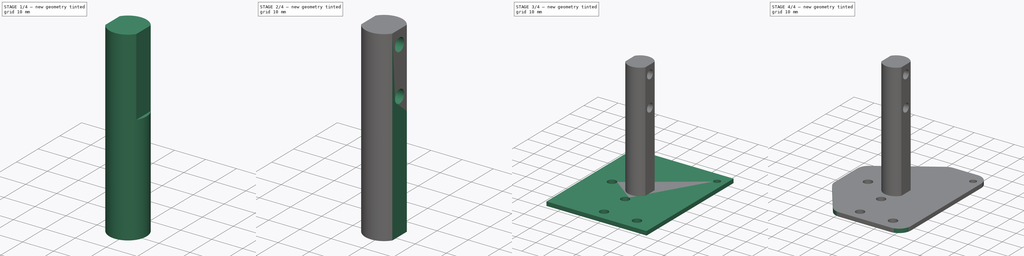
[diagram: build sequence overview — one tinted view per stage of 4, left to right]
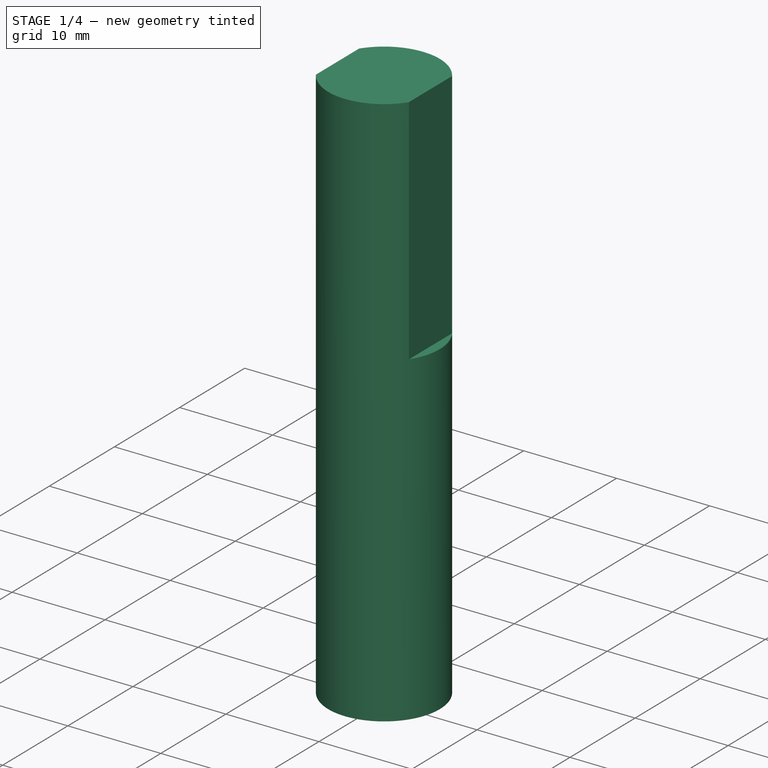
[diagram: stage 1 of 4 — iso view after this stage's code; geometry added in this stage tinted green]
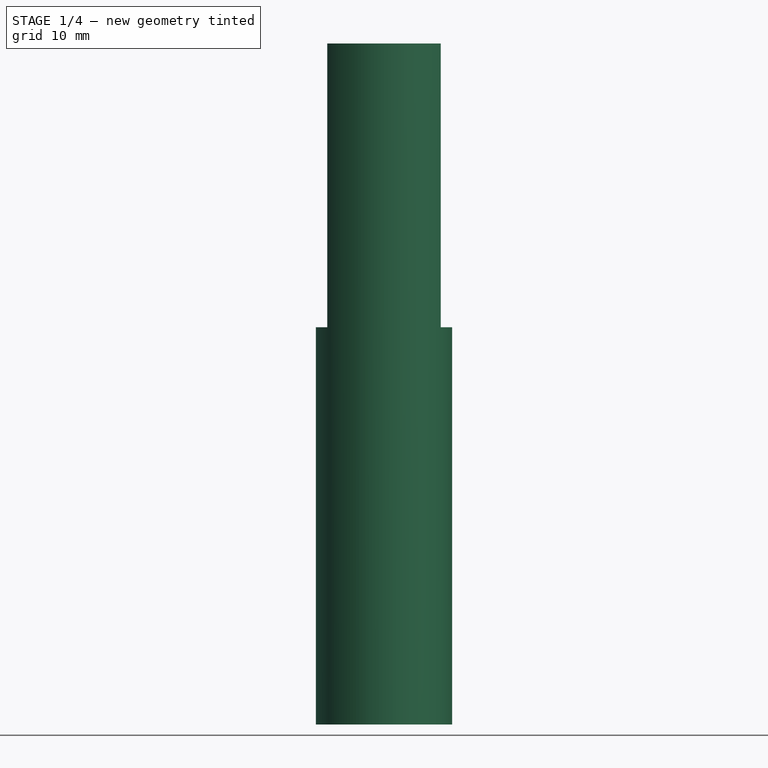
[diagram: stage 1 of 4 — front view after this stage's code; geometry added in this stage tinted green]
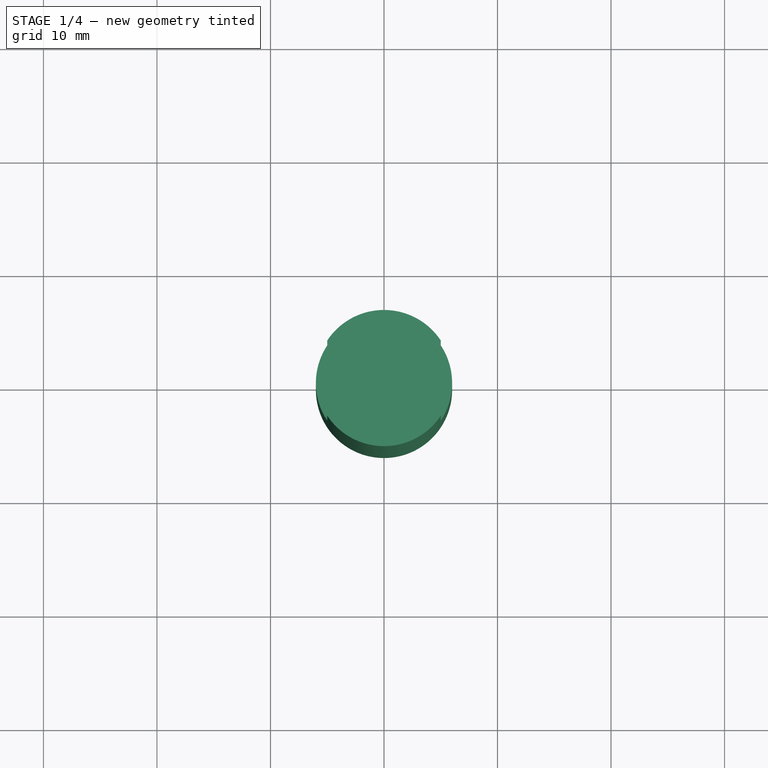
[diagram: stage 1 of 4 — top view after this stage's code; geometry added in this stage tinted green]
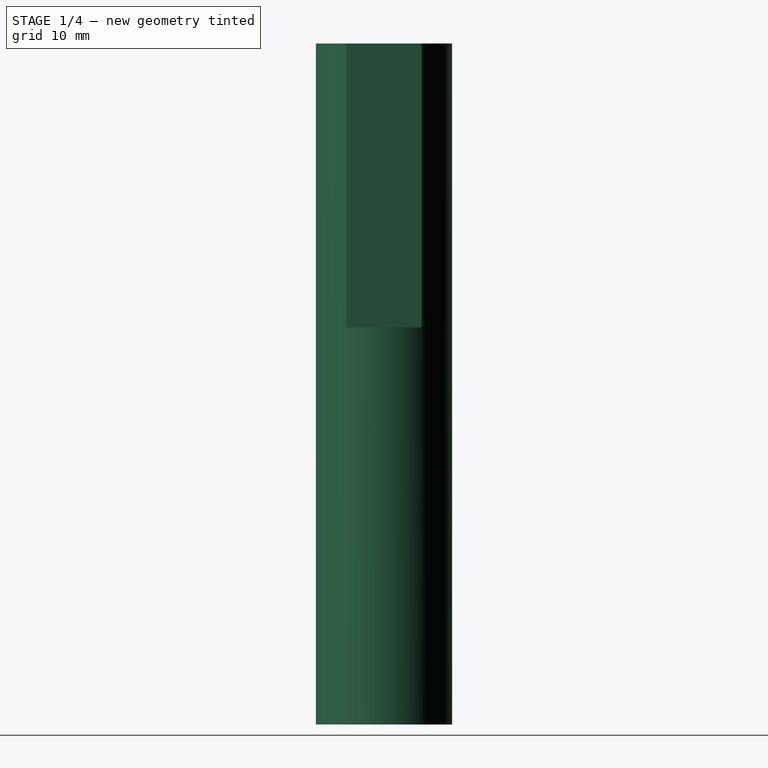
[diagram: stage 1 of 4 — right view after this stage's code; geometry added in this stage tinted green]
FCSTD DOCUMENT  (FreeCAD 1.1R20260325 (Git shallow))
Label: BaseMountFix
License: All rights reserved
LicenseURL: https://en.wikipedia.org/wiki/All_rights_reserved
objects: Sketcher::SketchObject×8, PartDesign::Pocket×5, App::Point×4, PartDesign::Pad×3, PartDesign::Body×2, App::Part×2, PartDesign::Fillet×1
note: 45 computed .brp shape members not serialized (recipe doc carries the construction recipe); baked Part::Feature solids carry a one-line shape summary decoded from their .brp

FEATURE [App::Point] Origin005  label="Origin006"
  Role = Origin
FEATURE [App::Point] Origin007  label="Origin009"
  Role = Origin
FEATURE [Sketcher::SketchObject] Sketch002
  ArcFitTolerance = 1e-06
  AttachmentSupport = -> [Origin006]
  ExternalTypes = [0]
  FullyConstrained = true
  MakeInternals = false
  MapMode = 5
  _ExternalGeoVersion = 1
  sketch-geometry (1):
    g0: Circle CenterX=0 CenterY=0 CenterZ=0 NormalX=0 NormalY=0 NormalZ=1 AngleXU=0 Radius=6
  constraints (2):
    c: Diameter(g0) = 12
    c: Coincident(g0,g-1)
FEATURE [PartDesign::Pad] Pad001  label="RoundPad"
  Direction = (0,0,1)
  Length = 35
  Length2 = 10
  Profile = -> Sketch002
  ReferenceAxis = -> Sketch002 [N_Axis]
  Refine = true
  SideType = 0
  Suppressed = false
  Type = 0
  Type2 = 0
FEATURE [Sketcher::SketchObject] Sketch003
  ArcFitTolerance = 1e-06
  AttachmentSupport = -> [Pad001]
  ExternalTypes = [0]
  FullyConstrained = true
  MakeInternals = false
  MapMode = 5
  Placement = pos=(0,0,35) rot=(0,0,1;0rad)
  _ExternalGeoVersion = 1
  sketch-geometry (4):
    g0: ArcOfCircle CenterX=0 CenterY=0 CenterZ=0 NormalX=0 NormalY=0 NormalZ=1 AngleXU=0 Radius=6 StartAngle=3.72728 EndAngle=5.6975
    g1: LineSegment StartX=5 StartY=3.31338 StartZ=0 EndX=5 EndY=-3.31662 EndZ=0
    g2: LineSegment StartX=-5 StartY=3.31338 StartZ=0 EndX=-5 EndY=-3.31662 EndZ=0
    g3: ArcOfCircle CenterX=0 CenterY=0 CenterZ=0 NormalX=0 NormalY=0 NormalZ=1 AngleXU=0 Radius=5.9982 StartAngle=0.585234 EndAngle=2.55636
  constraints (12):
    c: Coincident(g0,g-1)
    c: Diameter(g0) = 12
    c: Coincident(g0,g3)
    c: Coincident(g3,g1)
    c: Coincident(g3,g2)
    c: Vertical(g2)
    c: Coincident(g0,g2)
    c: Vertical(g1)
    c: Coincident(g0,g1)
    c: DistanceY(g1,g1) = 6.63
    c: DistanceY(g2,g2) = 6.63
    c: DistanceX(g2,g0) = 5
FEATURE [PartDesign::Pad] Pad002  label="MountPad"
  BaseFeature = -> Pad001
  Direction = (0,0,1)
  Length = 25
  Length2 = 10
  Profile = -> Sketch003
  ReferenceAxis = -> Sketch003 [N_Axis]
  Refine = true
  SideType = 0
  Suppressed = false
  Type = 0
  Type2 = 0
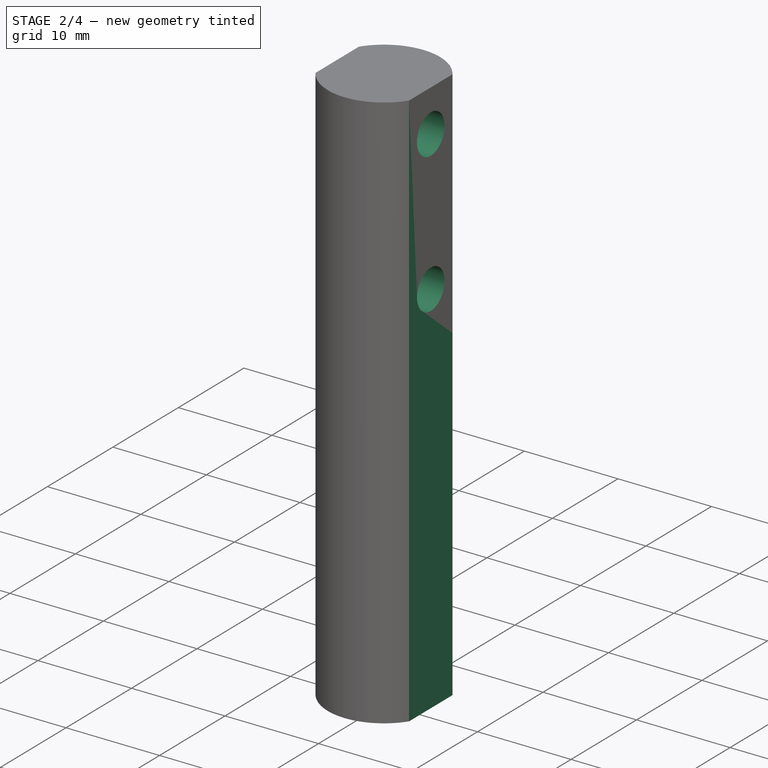
[diagram: stage 2 of 4 — iso view after this stage's code; geometry added in this stage tinted green]
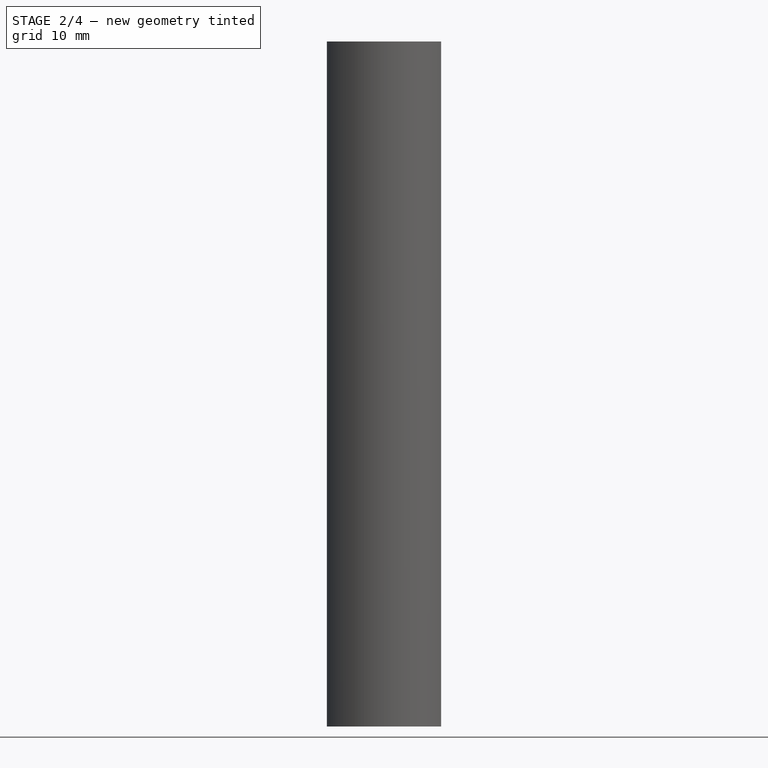
[diagram: stage 2 of 4 — front view after this stage's code; geometry added in this stage tinted green]
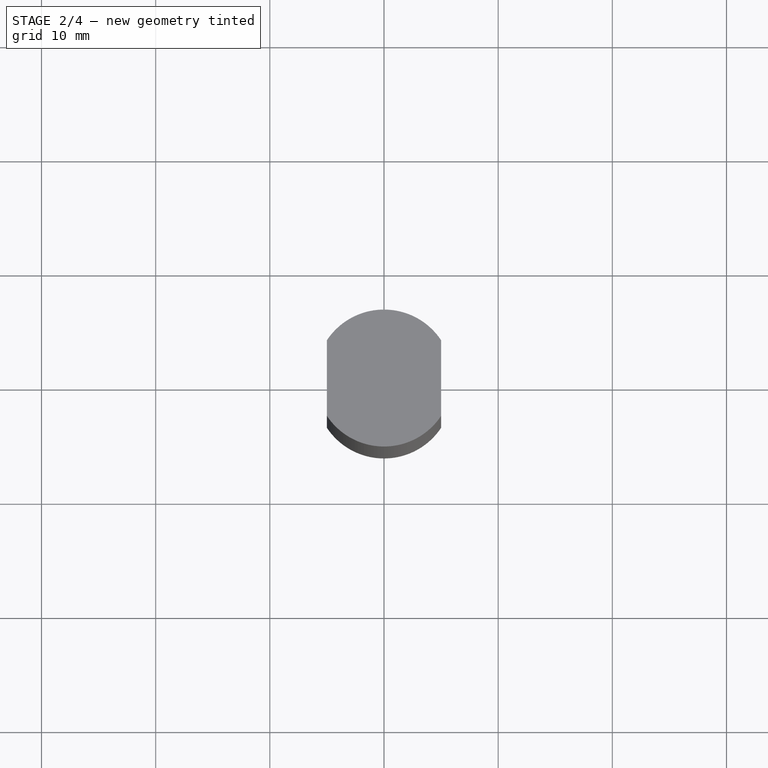
[diagram: stage 2 of 4 — top view after this stage's code; geometry added in this stage tinted green]
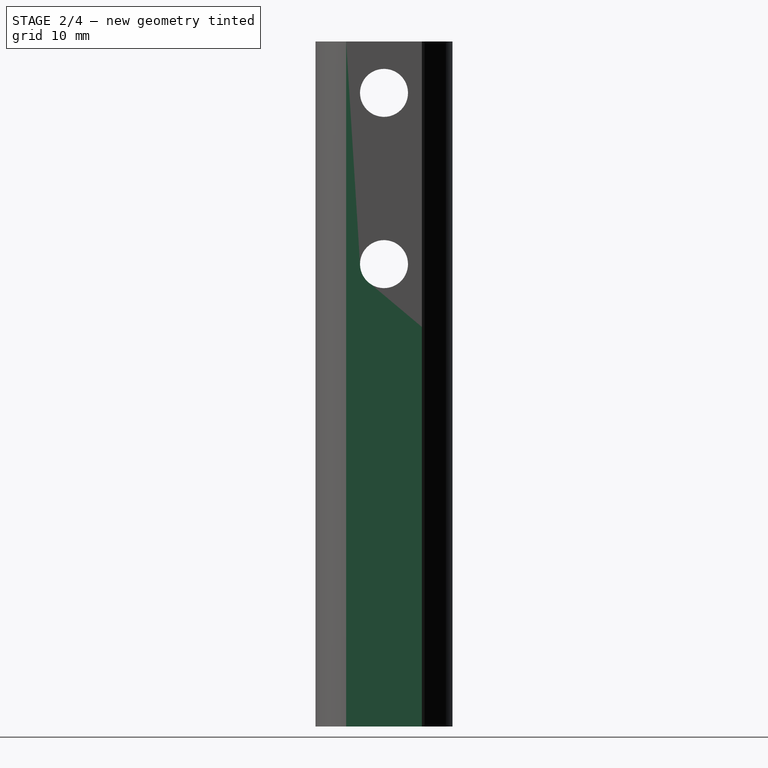
[diagram: stage 2 of 4 — right view after this stage's code; geometry added in this stage tinted green]
FEATURE [Sketcher::SketchObject] Sketch004
  ArcFitTolerance = 1e-06
  AttachmentSupport = -> [Pad002]
  ExternalTypes = [0]
  FullyConstrained = true
  MakeInternals = false
  MapMode = 5
  Placement = pos=(5,0,0) rot=(0.57735,0.57735,0.57735;2.0944rad)
  _ExternalGeoVersion = 1
  sketch-geometry (2):
    g0: Circle CenterX=0 CenterY=55.5 CenterZ=0 NormalX=0 NormalY=0 NormalZ=1 AngleXU=0 Radius=2.1
    g1: Circle CenterX=0 CenterY=40.5 CenterZ=0 NormalX=0 NormalY=0 NormalZ=1 AngleXU=0 Radius=2.1
  constraints (6):
    c: Diameter(g0) = 4.2
    c: PointOnObject(g0,g-2)
    c: Diameter(g1) = 4.2
    c: PointOnObject(g1,g-2)
    c: DistanceY(g1,g0) = 15
    c: DistanceY(g-1,g1) = 40.5
FEATURE [PartDesign::Pocket] Pocket001  label="MountScrewPockets"
  BaseFeature = -> Pad002
  Direction = (-1,0,0)
  Length = 5
  Length2 = 5
  Profile = -> Sketch004
  ReferenceAxis = -> Sketch004 [N_Axis]
  Refine = true
  SideType = 0
  Suppressed = false
  Type = 1
  Type2 = 0
FEATURE [PartDesign::Body] Body  label="BaseMountFixBody"
  AllowCompound = true
  Group = -> [Sketch,Pad,Sketch001,Pocket,Sketch005,Pocket002,Sketch006,Pocket003,Fillet]
  Origin = -> Origin002
  Tip = -> Fillet
FEATURE [App::Part] Part  label="BaseMountFixPart"
  Group = -> [Body]
  Origin = -> Origin
FEATURE [Sketcher::SketchObject] Sketch007
  ArcFitTolerance = 1e-06
  AttachmentSupport = -> [Pocket001]
  ExternalTypes = [0]
  FullyConstrained = false
  MakeInternals = false
  MapMode = 5
  Placement = pos=(0,0,35) rot=(0,0,1;0rad)
  _ExternalGeoVersion = 1
  sketch-geometry (8):
    g0: LineSegment StartX=-10.1447 StartY=10.6406 StartZ=0 EndX=-10.1447 EndY=-13.1339 EndZ=0
    g1: LineSegment StartX=-10.1447 StartY=-13.1339 StartZ=0 EndX=-5 EndY=-13.1339 EndZ=0
    g2: LineSegment StartX=-5 StartY=-13.1339 StartZ=0 EndX=-5 EndY=10.6406 EndZ=0
    g3: LineSegment StartX=-5 StartY=10.6406 StartZ=0 EndX=-10.1447 EndY=10.6406 EndZ=0
    g4: LineSegment StartX=11.8161 StartY=12.3072 StartZ=0 EndX=5 EndY=12.3072 EndZ=0
    g5: LineSegment StartX=5 StartY=12.3072 StartZ=0 EndX=5 EndY=-10.6339 EndZ=0
    g6: LineSegment StartX=5 StartY=-10.6339 StartZ=0 EndX=11.8161 EndY=-10.6339 EndZ=0
    g7: LineSegment StartX=11.8161 StartY=-10.6339 StartZ=0 EndX=11.8161 EndY=12.3072 EndZ=0
  constraints (18):
    c: Coincident(g0,g1)
    c: Coincident(g1,g2)
    c: Coincident(g2,g3)
    c: Coincident(g3,g0)
    c: Vertical(g0)
    c: Vertical(g2)
    c: Horizontal(g1)
    c: Horizontal(g3)
    c: Coincident(g4,g5)
    c: Coincident(g5,g6)
    c: Coincident(g6,g7)
    c: Coincident(g7,g4)
    c: Horizontal(g4)
    c: Horizontal(g6)
    c: Vertical(g5)
    c: Vertical(g7)
    c: DistanceX(g2,g4) = 10
    c: DistanceX(g-1,g4) = 5
FEATURE [PartDesign::Pocket] Pocket004
  BaseFeature = -> Pocket001
  Direction = (0,0,-1)
  Length = 5
  Length2 = 5
  Profile = -> Sketch007
  ReferenceAxis = -> Sketch007 [N_Axis]
  Refine = true
  SideType = 0
  Suppressed = false
  Type = 1
  Type2 = 0
FEATURE [PartDesign::Body] Body001  label="BaseMountSwivelBody"
  AllowCompound = true
  Group = -> [Sketch002,Pad001,Sketch003,Pad002,Sketch004,Pocket001,Sketch007,Pocket004]
  Origin = -> Origin006
  Tip = -> Pocket004
FEATURE [App::Part] Part001  label="BaseMountSwivelPart"
  Group = -> [Body001]
  Origin = -> Origin004
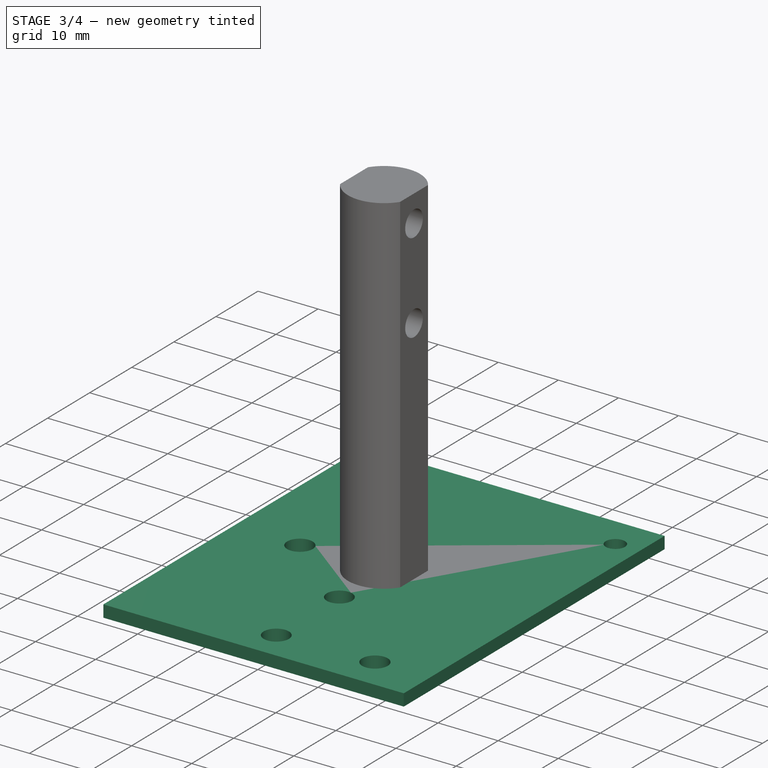
[diagram: stage 3 of 4 — iso view after this stage's code; geometry added in this stage tinted green]
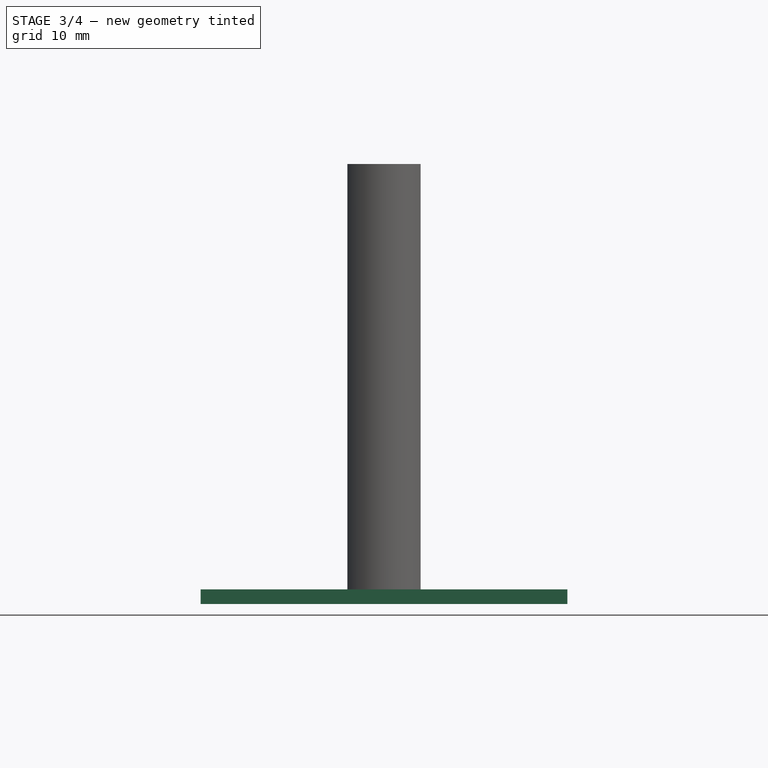
[diagram: stage 3 of 4 — front view after this stage's code; geometry added in this stage tinted green]
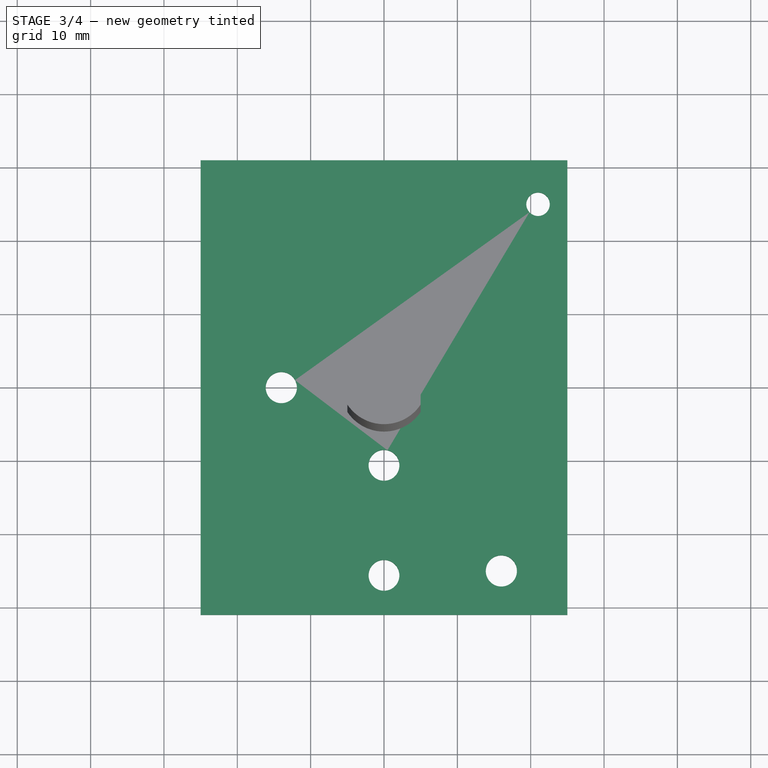
[diagram: stage 3 of 4 — top view after this stage's code; geometry added in this stage tinted green]
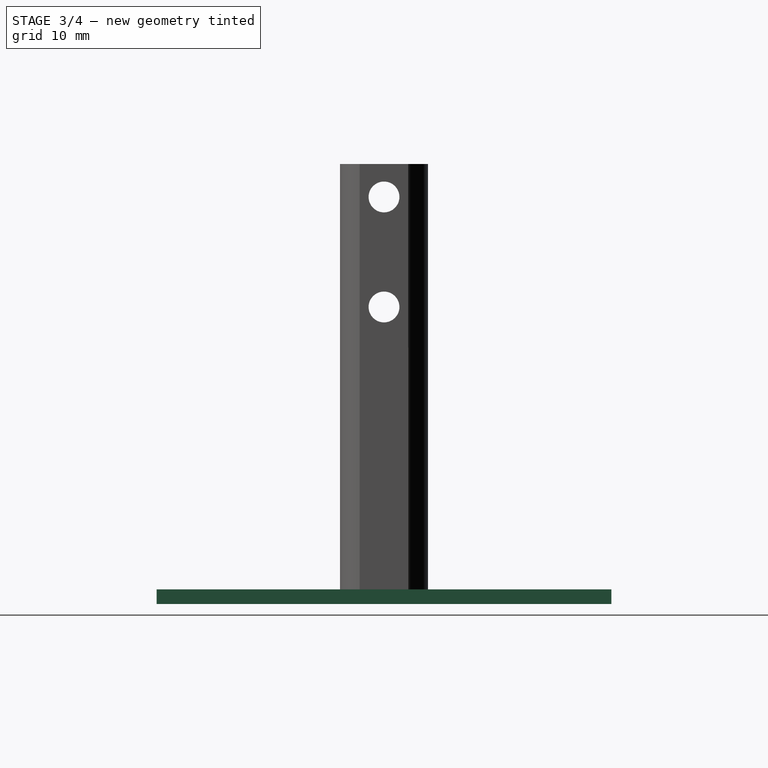
[diagram: stage 3 of 4 — right view after this stage's code; geometry added in this stage tinted green]
FEATURE [App::Point] Origin001
  Role = Origin
FEATURE [App::Point] Origin003
  Role = Origin
FEATURE [Sketcher::SketchObject] Sketch
  ArcFitTolerance = 1e-06
  AttachmentSupport = -> [Origin002]
  ExternalTypes = [0]
  FullyConstrained = true
  MakeInternals = false
  MapMode = 5
  _ExternalGeoVersion = 1
  sketch-geometry (4):
    g0: LineSegment StartX=-25 StartY=31 StartZ=0 EndX=-25 EndY=-31 EndZ=0
    g1: LineSegment StartX=-25 StartY=-31 StartZ=0 EndX=25 EndY=-31 EndZ=0
    g2: LineSegment StartX=25 StartY=-31 StartZ=0 EndX=25 EndY=31 EndZ=0
    g3: LineSegment StartX=25 StartY=31 StartZ=0 EndX=-25 EndY=31 EndZ=0
  constraints (11):
    c: Coincident(g0,g1)
    c: Coincident(g1,g2)
    c: Coincident(g2,g3)
    c: Coincident(g3,g0)
    c: Vertical(g0)
    c: Vertical(g2)
    c: Horizontal(g1)
    c: Horizontal(g3)
    c: Distance(g0,g2) = 50
    c: Distance(g1,g3) = 62
    c: Symmetric(g2,g0,g-1)
FEATURE [PartDesign::Pad] Pad  label="SidePad"
  Direction = (0,0,1)
  Length = 2
  Length2 = 10
  Profile = -> Sketch
  ReferenceAxis = -> Sketch [N_Axis]
  Refine = true
  SideType = 0
  Suppressed = false
  Type = 0
  Type2 = 0
FEATURE [Sketcher::SketchObject] Sketch001
  ArcFitTolerance = 1e-06
  AttachmentSupport = -> [Pad]
  ExternalTypes = [0]
  FullyConstrained = true
  MakeInternals = false
  MapMode = 5
  Placement = pos=(0,0,2) rot=(0,0,1;0rad)
  _ExternalGeoVersion = 1
  sketch-geometry (3):
    g0: Circle CenterX=16 CenterY=-25 CenterZ=0 NormalX=0 NormalY=0 NormalZ=1 AngleXU=0 Radius=2.125
    g1: Circle CenterX=-14 CenterY=-1e-15 CenterZ=0 NormalX=0 NormalY=0 NormalZ=1 AngleXU=0 Radius=2.125
    g2: Circle CenterX=21 CenterY=25 CenterZ=0 NormalX=0 NormalY=0 NormalZ=1 AngleXU=0 Radius=1.6
  constraints (9):
    c: Diameter(g0) = 4.25
    c: Diameter(g1) = 4.25
    c: Diameter(g2) = 3.2
    c: DistanceX(g-1,g0) = 16
    c: DistanceY(g0,g-1) = 25
    c: DistanceX(g1,g0) = 30
    c: DistanceY(g0,g1) = 25
    c: DistanceY(g1,g2) = 25
    c: DistanceX(g0,g2) = 5
FEATURE [PartDesign::Pocket] Pocket  label="BoltPockets"
  BaseFeature = -> Pad
  Direction = (0,0,-1)
  Length = 5
  Length2 = 5
  Profile = -> Sketch001
  ReferenceAxis = -> Sketch001 [N_Axis]
  Refine = true
  SideType = 0
  Suppressed = false
  Type = 1
  Type2 = 0
FEATURE [Sketcher::SketchObject] Sketch005
  ArcFitTolerance = 1e-06
  AttachmentSupport = -> [Pocket]
  ExternalTypes = [0]
  FullyConstrained = true
  MakeInternals = false
  MapMode = 5
  Placement = pos=(0,0,2) rot=(0,0,1;0rad)
  _ExternalGeoVersion = 1
  sketch-geometry (2):
    g0: Circle CenterX=0 CenterY=-10.6 CenterZ=0 NormalX=0 NormalY=0 NormalZ=1 AngleXU=0 Radius=2.1
    g1: Circle CenterX=0 CenterY=-25.6 CenterZ=0 NormalX=0 NormalY=0 NormalZ=1 AngleXU=0 Radius=2.1
  constraints (6):
    c: Diameter(g0) = 4.2
    c: PointOnObject(g0,g-2)
    c: Diameter(g1) = 4.2
    c: PointOnObject(g1,g-2)
    c: DistanceY(g1,g0) = 15
    c: DistanceY(g1,g-1) = 25.6
FEATURE [PartDesign::Pocket] Pocket002  label="MountSwivelHolesPockets"
  BaseFeature = -> Pocket
  Direction = (0,0,-1)
  Length = 5
  Length2 = 5
  Profile = -> Sketch005
  ReferenceAxis = -> Sketch005 [N_Axis]
  Refine = true
  SideType = 0
  Suppressed = false
  Type = 1
  Type2 = 0
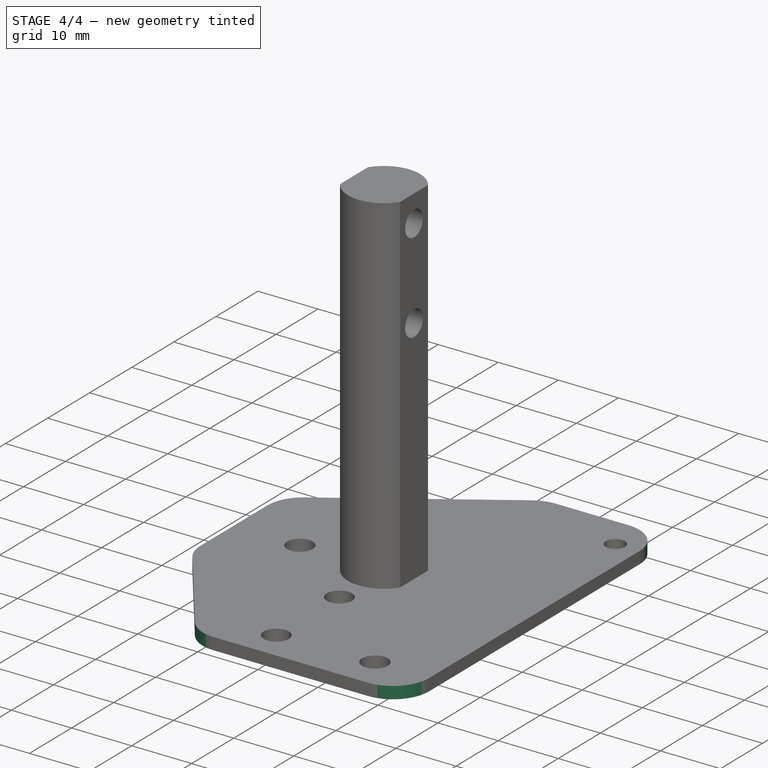
[diagram: stage 4 of 4 — iso view after this stage's code; geometry added in this stage tinted green]
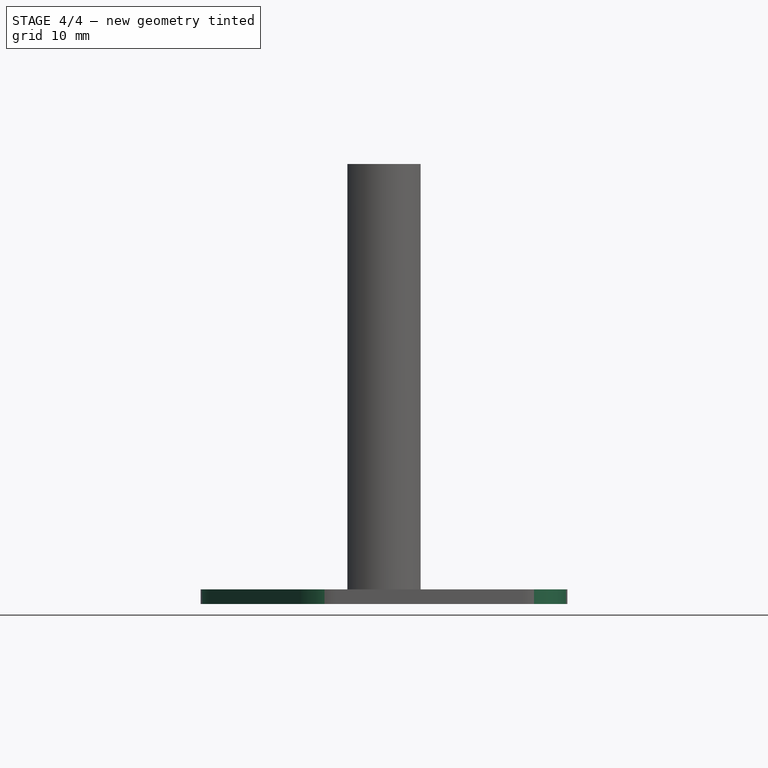
[diagram: stage 4 of 4 — front view after this stage's code; geometry added in this stage tinted green]
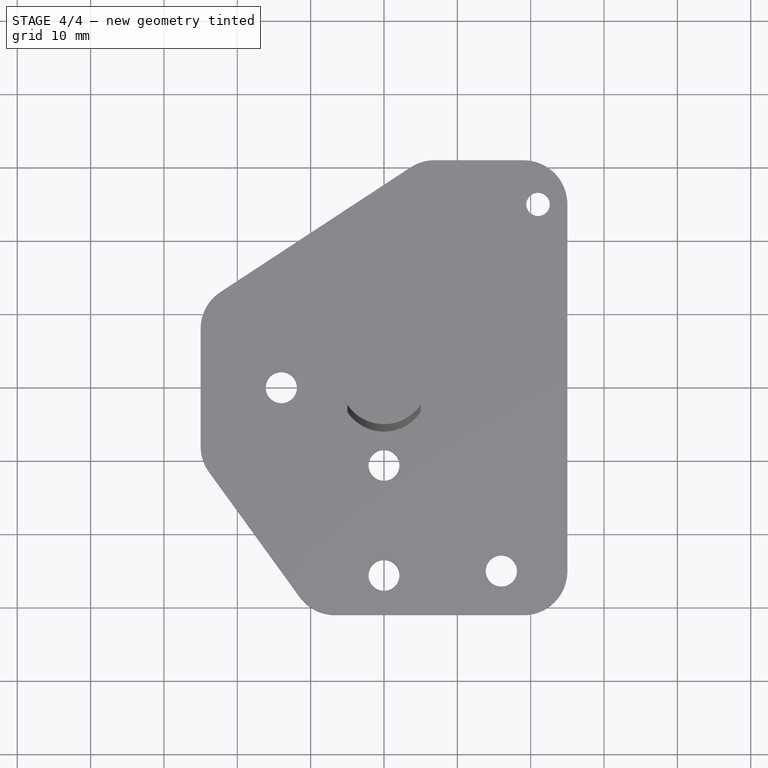
[diagram: stage 4 of 4 — top view after this stage's code; geometry added in this stage tinted green]
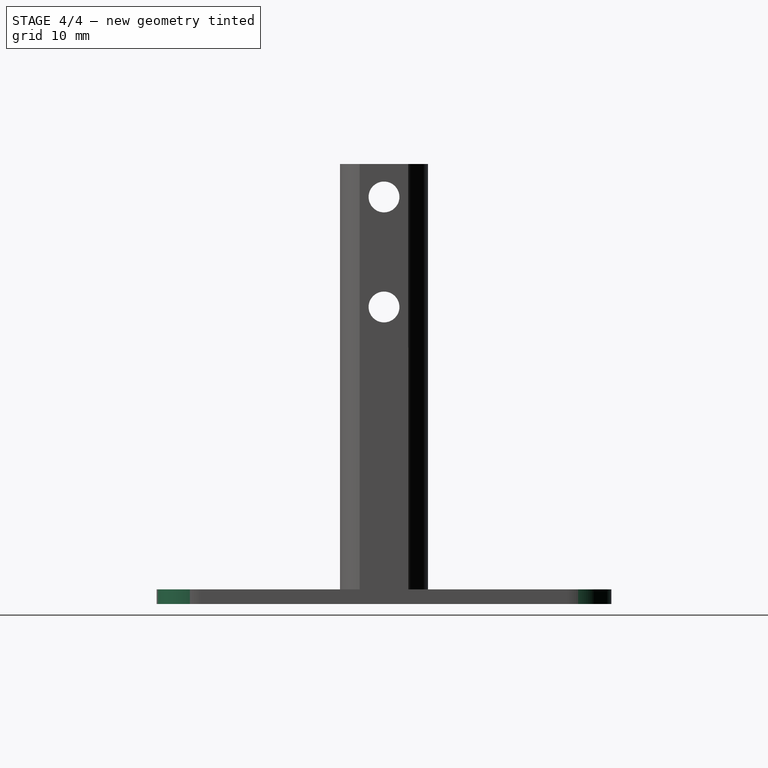
[diagram: stage 4 of 4 — right view after this stage's code; geometry added in this stage tinted green]
FEATURE [Sketcher::SketchObject] Sketch006
  ArcFitTolerance = 1e-06
  AttachmentSupport = -> [Pocket002]
  ExternalTypes = [0]
  FullyConstrained = false
  MakeInternals = false
  MapMode = 5
  Placement = pos=(0,0,2) rot=(0,0,1;0rad)
  _ExternalGeoVersion = 1
  sketch-geometry (6):
    g0: LineSegment StartX=9.96731 StartY=34.1939 StartZ=0 EndX=-27.5794 EndY=9.5677 EndZ=0
    g1: LineSegment StartX=-27.5794 StartY=9.5677 StartZ=0 EndX=-27.5794 EndY=-6.33443 EndZ=0
    g2: LineSegment StartX=-27.5794 StartY=-6.33443 StartZ=0 EndX=-5.49309 EndY=-36.8135 EndZ=0
    g3: LineSegment StartX=-5.49309 StartY=-36.8135 StartZ=0 EndX=-39.6164 EndY=-35.3779 EndZ=0
    g4: LineSegment StartX=-39.6164 StartY=-35.3779 StartZ=0 EndX=-36.7452 EndY=45.7892 EndZ=0
    g5: LineSegment StartX=-36.7452 StartY=45.7892 StartZ=0 EndX=9.96731 EndY=34.1939 EndZ=0
  constraints (7):
    c: Coincident(g0,g1)
    c: Vertical(g1)
    c: Coincident(g1,g2)
    c: Coincident(g2,g3)
    c: Coincident(g3,g4)
    c: Coincident(g4,g5)
    c: Coincident(g5,g0)
FEATURE [PartDesign::Pocket] Pocket003
  BaseFeature = -> Pocket002
  Direction = (0,0,-1)
  Length = 5
  Length2 = 5
  Profile = -> Sketch006
  ReferenceAxis = -> Sketch006 [N_Axis]
  Refine = true
  SideType = 0
  Suppressed = false
  Type = 1
  Type2 = 0
FEATURE [PartDesign::Fillet] Fillet  label="RoundCornerFillet"
  Base = -> Pocket003 [Edge16,Edge2,Edge4,Edge26,Edge27,Edge28]
  BaseFeature = -> Pocket003
  Radius = 6
  Refine = true
  SupportTransform = false
  Suppressed = false
  UseAllEdges = false
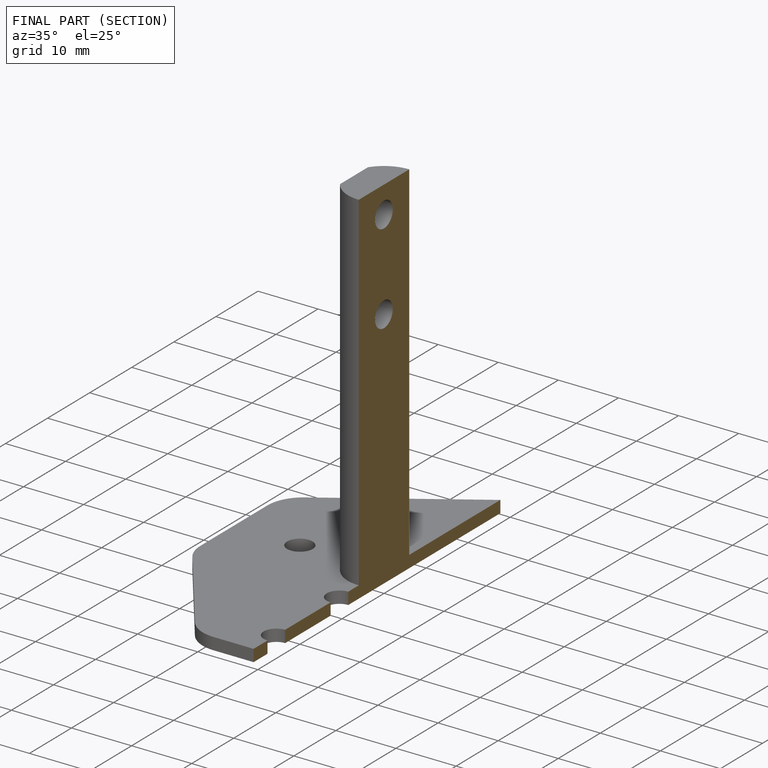
[diagram: finished part — half-section view (interior)]
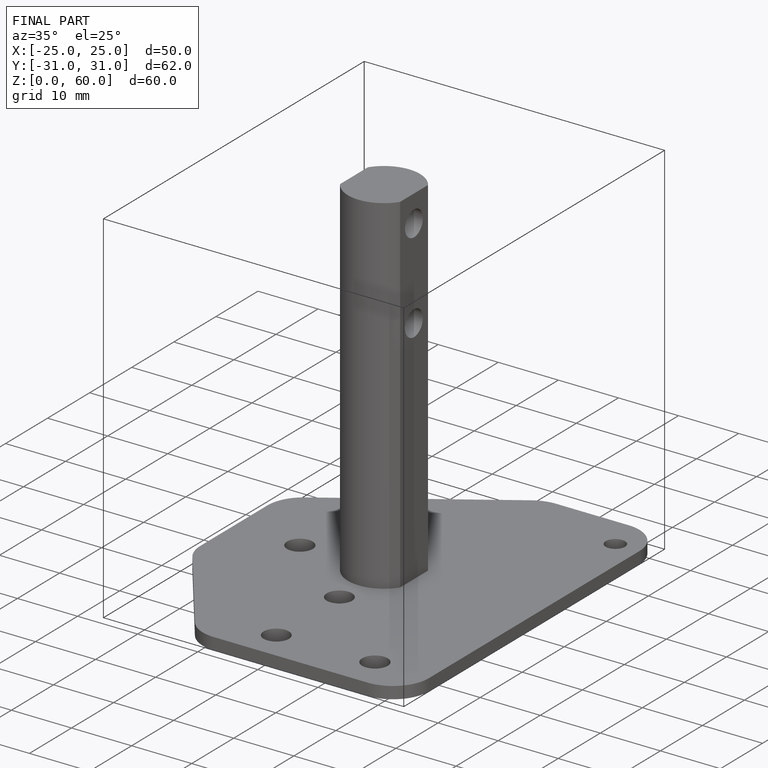
[diagram: finished part — iso view with bounding-box wireframe]
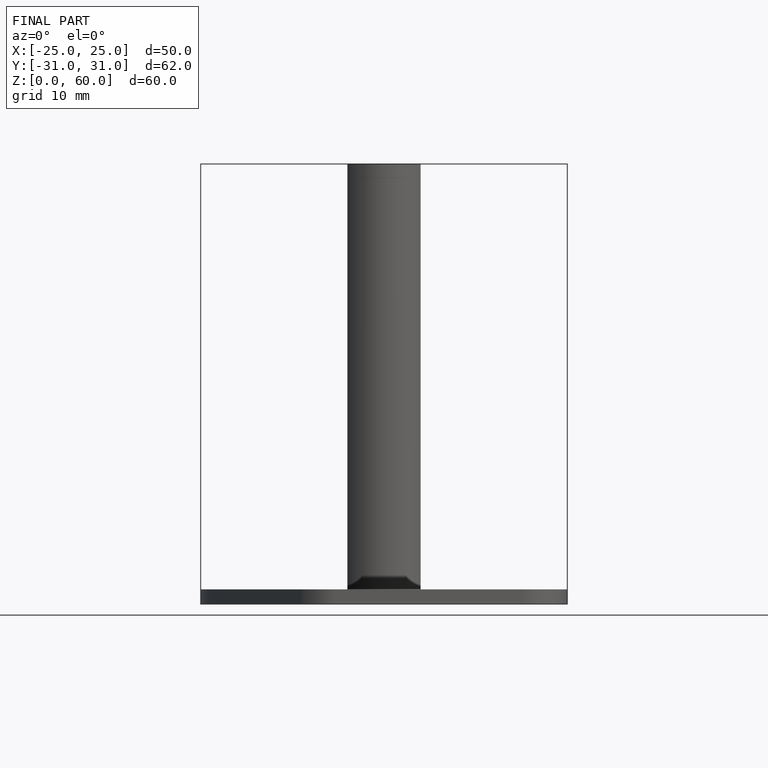
[diagram: finished part — front view with bounding-box wireframe]
